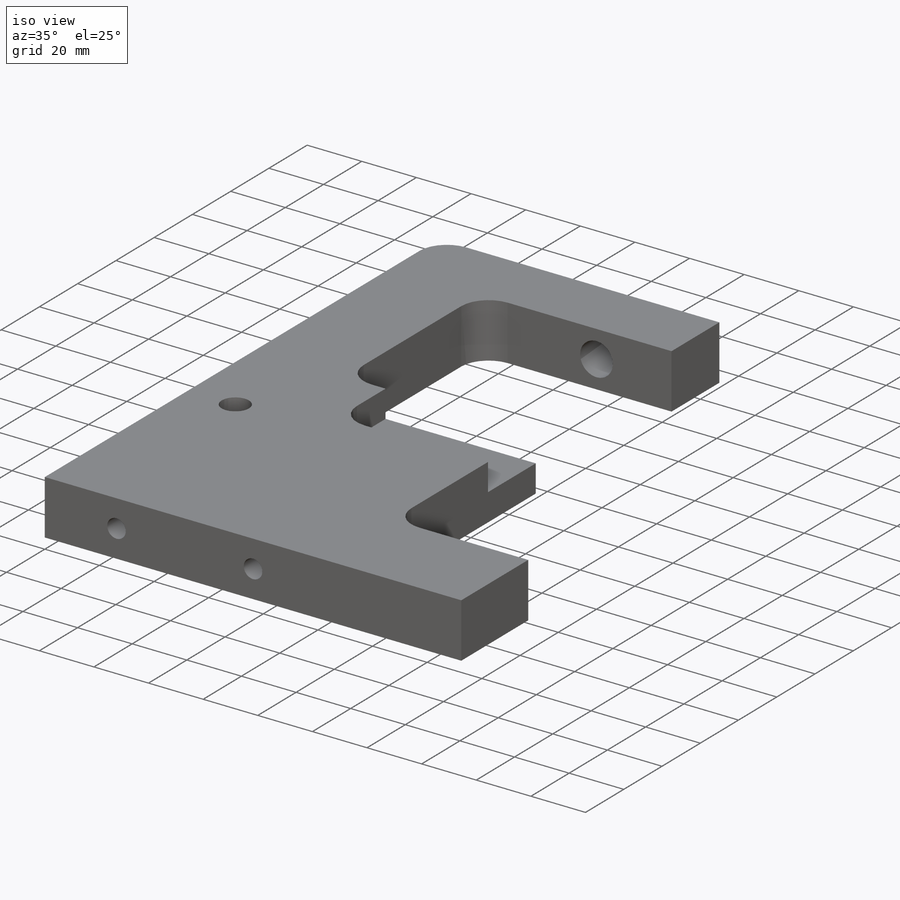
[diagram: iso view]
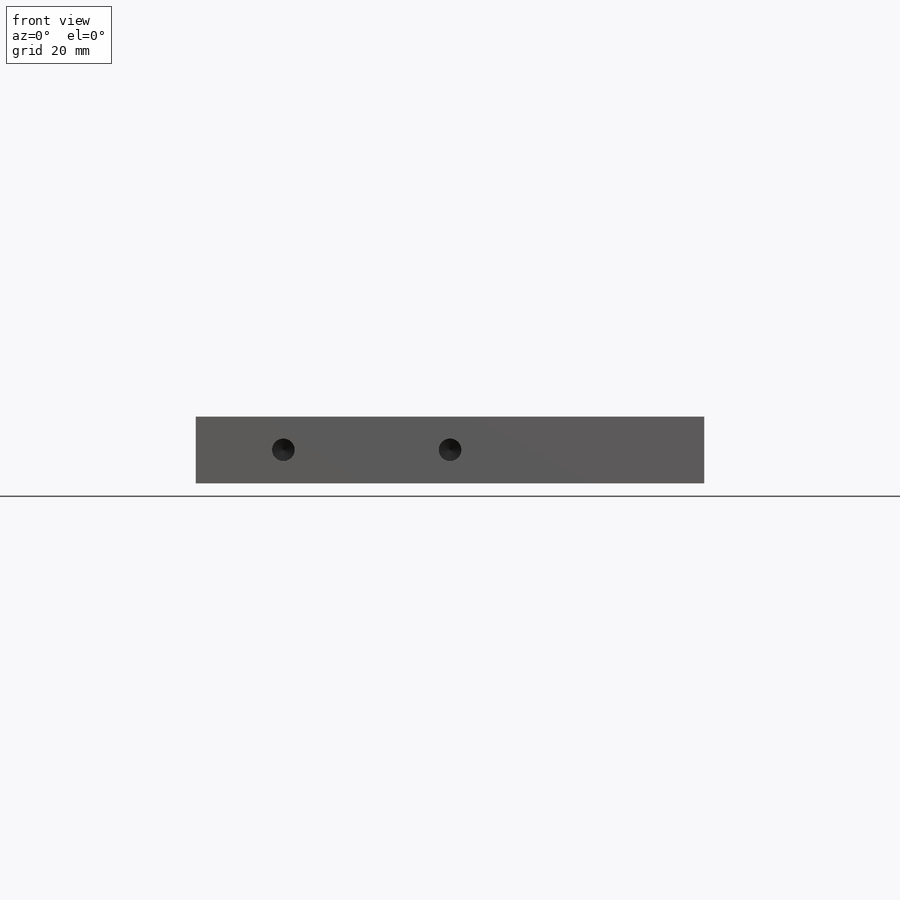
[diagram: front view]
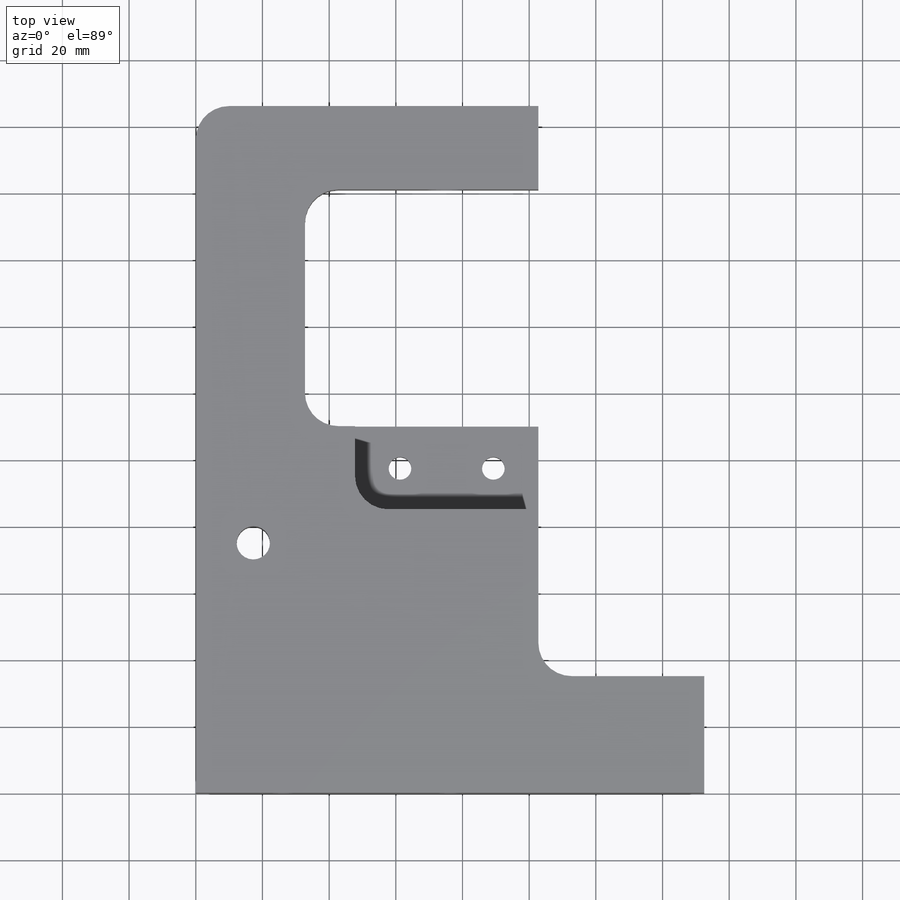
[diagram: top view]
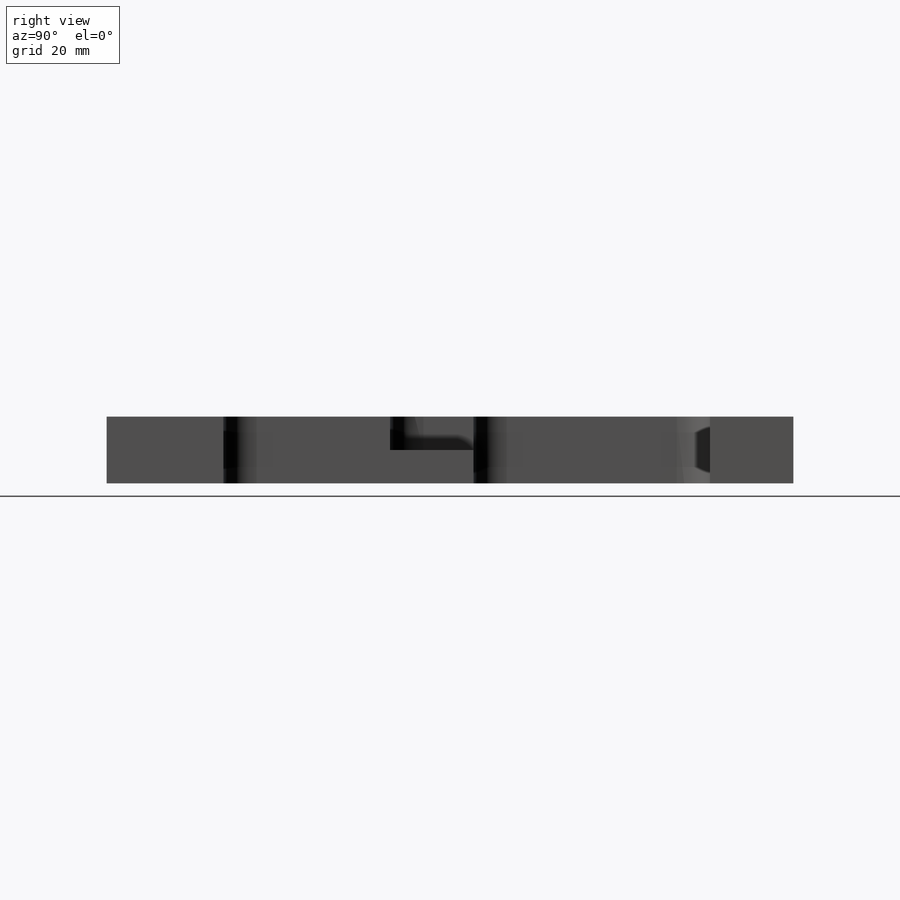
[diagram: right view]
SOLIDWORKS PART (.sldprt)
format: sldprt  version: not decoded by parser v0  size: 581,632 bytes
history: native  units: mm
features: sketch x14, extrude x12, plane x3, hole x3, material x1, cut_extrude x1, thread x1 (+11 scaffold rows collapsed)
feature tree (46):
  scaffold x11  (default folders/planes/origin — collapsed)
  material  "Unlegierter Baustahl"
  plane  "Vorne"
  plane  "Oben"
  plane  "Rechts"
  sketch  "Skizze1"  dims[c1.D4=10.0mm c1.D10=10.0mm c1.D1=~126.465864mm c2.D1=45.0deg c2.D2=206.0mm c2.D3=102.75mm c2.D4=80.0mm c2.D5=25.0mm c2.D6=70.0mm c2.D7=71.0mm c2.D8=35.0mm c2.D9=25.0mm c2.D10=60.0mm c2.D11=45.0mm c2.D12=152.5mm c3.D9=49.75mm c3.D10=102.75mm]
  extrude  "Linear austragen1"  Depth=20mm
  sketch  "Skizze20"  dims[D1=10.0mm D2=55.0mm D3=25.0mm]
  cut_extrude  "Linear austragen2"  Depth=10mm
  hole  "Ø12.0 (12) Durchmesser Bohrung1"  Diameter=12mm Depth=25mm
  sketch  "Skizze6"  dims[D1=27.5mm]
  sketch  "Skizze7"  dims[hole-wizard template sketch: 59 standard entries collapsed; hole parameters kept: c18.Bohrerdurchmesser=12.0mm c18.Bohrungstiefe=25.0mm]
  extrude  "Ø10.0 (10) Durchmesser Bohrung1"  [1 undecoded]
  sketch  "Skizze8"  dims[c1.D1=17.5mm c1.D2=75.0mm c2.D1=75.0mm c2.D2=17.25mm]
  sketch  "Skizze9"  dims[hole-wizard template sketch: 59 standard entries collapsed; hole parameters kept: c18.Bohrerdurchmesser=10.0mm c18.Bohrungstiefe=20.0mm]
  extrude  "M6 Gewindebohrung1"  [1 undecoded]
  sketch  "Skizze13"  dims[D1=75.0mm D2=37.5mm]
  sketch  "Skizze12"  dims[hole-wizard template sketch: 59 standard entries collapsed; hole parameters kept: c18.Bohrerdurchmesser=5.0mm c18.Bohrungstiefe=12.25mm]
  thread  "Bohrungsgewinde1"  Diameter=6mm  [1 undecoded]
  extrude  "M8 Gewindebohrung1"  [1 undecoded]
  sketch  "Skizze14"  dims[c1.D1=25.0mm c1.D2=25.0mm c2.D1=26.25mm c2.D2=50.0mm c2.D3=20.0mm]
  sketch  "Skizze15"  dims[hole-wizard template sketch: 46 standard entries collapsed; hole parameters kept: c15.Bohrerdurchmesser=6.8mm c15.Bohrungstiefe=22.25mm c15.D3=~14.816244mm c15.Spitzenwinkel=118.0deg]
  extrude  "Bohrungsgewinde20"  Depth=16mm
  extrude  "Bohrungsgewinde21"  Depth=16mm
  extrude  "M6 Gewindebohrung3"  [1 undecoded]
  sketch  "Skizze19"  dims[D1=21.5mm D2=12.5mm]
  sketch  "Skizze18"  dims[hole-wizard template sketch: 46 standard entries collapsed; hole parameters kept: c15.Bohrerdurchmesser=5.0mm c15.Bohrungstiefe=17.0mm c15.D3=~14.816244mm c15.Spitzenwinkel=118.0deg]
  extrude  "Bohrungsgewinde16"  Depth=12mm
  extrude  "Bohrungsgewinde17"  Depth=12mm faceID=3
  hole  "FaceIDTag-20"  Diameter=20 faceID=20
  hole  "FaceIDTag-28"  Diameter=28 faceID=28
  extrude  "M8 Gewindebohrung2"  [1 undecoded]
  sketch  "Skizze22"  dims[c1.D1=13.5mm c1.D2=~13.585783mm c2.D1=41.5mm c2.D2=13.5mm c2.D3=12.5mm]
  sketch  "Skizze21"  dims[hole-wizard template sketch: 46 standard entries collapsed; hole parameters kept: c15.Bohrerdurchmesser=6.8mm c15.Bohrungstiefe=22.25mm c15.D3=~14.816244mm c15.Spitzenwinkel=118.0deg]
  extrude  "Bohrungsgewinde18"  Depth=10mm
  extrude  "Bohrungsgewinde19"  Depth=10mm
decode coverage: 26 of 31 modeling features carry decoded parameters
note: ~ marks probable driven/reference dimensions
note: 6 parameter values undecoded
summary: no parameter record found for 5 features
note: suppression state not decoded; provenance and decode notes live in map.json
